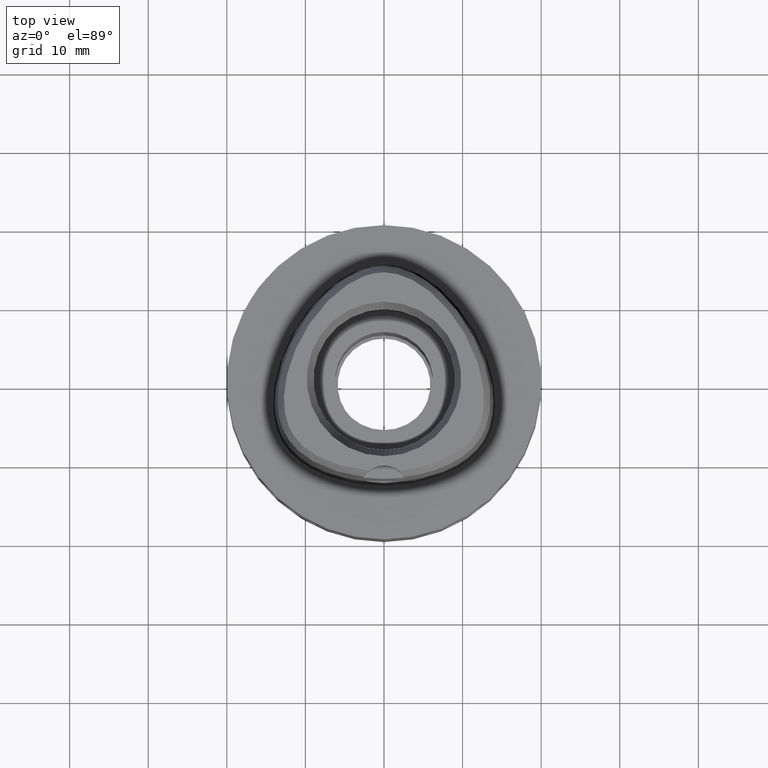
[diagram: clean part render]
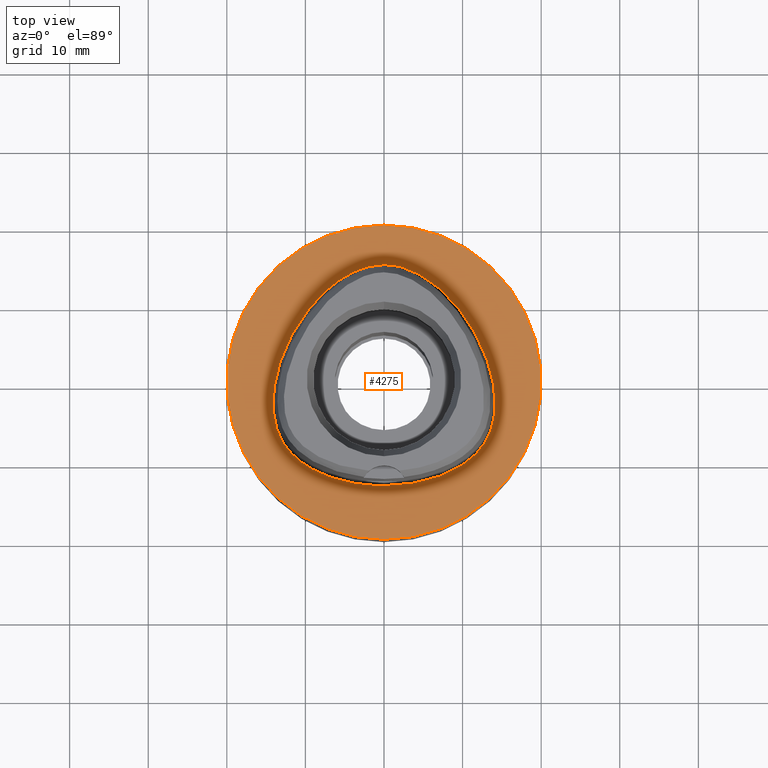
[diagram: same view with one face highlighted and labeled with its STEP entity id]
A machine part, top view. The second image highlights one B-rep face of the part: STEP entity #4275.
In plain terms, the highlighted planar face has unit normal (0, 0, -1).
Its self-contained STEP definition (entity closure, byte-faithful):
#43 = FACE_OUTER_BOUND ( 'NONE', #574, .T. ) ;
#73 = CARTESIAN_POINT ( 'NONE',  ( -2.779232506827000175E-12, -13.16299999999999848, 3.908170083851000111E-13 ) ) ;
#280 = CARTESIAN_POINT ( 'NONE',  ( -7.161686385159452328, -12.03179218665625605, 3.577440467884655806E-08 ) ) ;
#295 = DIRECTION ( 'NONE',  ( 0.0000000000000000000, -1.000000000000000000, 0.0000000000000000000 ) ) ;
#305 = CARTESIAN_POINT ( 'NONE',  ( -9.170754362053505915, 9.963637499419712995, 3.577440467884655806E-08 ) ) ;
#328 = CARTESIAN_POINT ( 'NONE',  ( 1.806015238205999858E-10, 14.96299999994999830, 3.914646384828000049E-13 ) ) ;
#332 = EDGE_CURVE ( 'NONE', #2334, #4506, #4452, .T. ) ;
#333 = CARTESIAN_POINT ( 'NONE',  ( 12.97089752013720521, -7.488751174883140571, -2.401934560806746194E-07 ) ) ;
#355 = CARTESIAN_POINT ( 'NONE',  ( 13.73754042016165222, -5.736583204838447969, -2.401934560806746194E-07 ) ) ;
#393 = CARTESIAN_POINT ( 'NONE',  ( 3.782076376367932369, 14.19393594298898797, -2.401934560806746194E-07 ) ) ;
#541 = AXIS2_PLACEMENT_3D ( 'NONE', #2586, #1479, #807 ) ;
#574 = EDGE_LOOP ( 'NONE', ( #1365, #2173 ) ) ;
#655 = CARTESIAN_POINT ( 'NONE',  ( 0.0000000000000000000, 1.249139735129999848E-14, 0.0000000000000000000 ) ) ;
#685 = CARTESIAN_POINT ( 'NONE',  ( -1.631981571977094925, 14.84698124911709094, 3.577440467884655806E-08 ) ) ;
#729 = CARTESIAN_POINT ( 'NONE',  ( 7.161686387522159691, -12.03179219316835713, -2.401934560806746194E-07 ) ) ;
#745 = EDGE_CURVE ( 'NONE', #847, #2729, #1385, .T. ) ;
#807 = DIRECTION ( 'NONE',  ( 0.0000000000000000000, 1.000000000000000000, 0.0000000000000000000 ) ) ;
#847 = VERTEX_POINT ( 'NONE', #73 ) ;
#1031 = CARTESIAN_POINT ( 'NONE',  ( -2.779232506827000175E-12, -13.16299999999999848, 3.908170083851000111E-13 ) ) ;
#1100 = CARTESIAN_POINT ( 'NONE',  ( 0.5439938577724008351, 14.96300000601531366, -2.401934560806746194E-07 ) ) ;
#1289 = CARTESIAN_POINT ( 'NONE',  ( 1.806015238205999858E-10, 14.96299999994999830, 3.914646384828000049E-13 ) ) ;
#1365 = ORIENTED_EDGE ( 'NONE', *, *, #3435, .F. ) ;
#1370 = CARTESIAN_POINT ( 'NONE',  ( 1.806015238205999858E-10, 14.96299999994999830, 3.914646384828000049E-13 ) ) ;
#1385 = B_SPLINE_CURVE_WITH_KNOTS ( 'NONE', 3,
 ( #2846, #3610, #4283, #729, #2175, #1811, #3943, #1395, #333, #4351, #355, #1835, #4257, #2138, #1749, #1460, #4674, #3632, #393, #3274, #1100, #1370 ),
 .UNSPECIFIED., .F., .F.,
 ( 4, 1, 1, 1, 1, 1, 1, 1, 1, 1, 1, 1, 1, 1, 1, 1, 1, 1, 1, 4 ),
 ( 0.0000000000000000000, 0.08333333333319001279, 0.1666666666664000096, 0.2083333333328999948, 0.2499999999995000111, 0.2916666666661000273, 0.3124999999992999489, 0.3333333333326000125, 0.3541666666659000207, 0.3749999999991999733, 0.4166666666658000451, 0.4583333333323000303, 0.4999999999988999910, 0.5833333333319999925, 0.6666666666652000250, 0.7499999999983000265, 0.8333333333314000280, 0.9166666666646000605, 0.9583333333311000457, 1.000000000000000000 ),
 .UNSPECIFIED. ) ;
#1395 = CARTESIAN_POINT ( 'NONE',  ( 12.52522393244426446, -8.173666409788390652, -2.401934560806746194E-07 ) ) ;
#1460 = CARTESIAN_POINT ( 'NONE',  ( 11.50301490694611850, 6.641268753016376536, -2.401934560806746194E-07 ) ) ;
#1479 = DIRECTION ( 'NONE',  ( 0.0000000000000000000, 0.0000000000000000000, -1.000000000000000000 ) ) ;
#1486 = DIRECTION ( 'NONE',  ( 0.0000000000000000000, 0.0000000000000000000, -1.000000000000000000 ) ) ;
#1489 = CARTESIAN_POINT ( 'NONE',  ( 0.0000000000000000000, 1.224646799146999965E-14, 0.0000000000000000000 ) ) ;
#1530 = CARTESIAN_POINT ( 'NONE',  ( 0.0000000000000000000, 20.00000000000000000, 0.0000000000000000000 ) ) ;
#1744 = CARTESIAN_POINT ( 'NONE',  ( -4.043386007570667573, -12.92392499911871084, 3.577440467884655806E-08 ) ) ;
#1749 = CARTESIAN_POINT ( 'NONE',  ( 13.21414037614192161, 2.960287502052545427, -2.401934560806746194E-07 ) ) ;
#1767 = CARTESIAN_POINT ( 'NONE',  ( -13.73754041352899158, -5.736583202869416809, 3.577440467884655806E-08 ) ) ;
#1811 = CARTESIAN_POINT ( 'NONE',  ( 10.81142122620143198, -9.988463676619012688, -2.401934560806746194E-07 ) ) ;
#1823 = PLANE ( 'NONE',  #3717 ) ;
#1835 = CARTESIAN_POINT ( 'NONE',  ( 14.05597390183479689, -4.368733594602097092, -2.401934560806746194E-07 ) ) ;
#1861 = FACE_BOUND ( 'NONE', #4068, .T. ) ;
#2043 = CARTESIAN_POINT ( 'NONE',  ( -12.52522392685857078, -8.173666405723038153, 3.577440467884655806E-08 ) ) ;
#2056 = CIRCLE ( 'NONE', #541, 20.00000000000000000 ) ;
#2091 = CARTESIAN_POINT ( 'NONE',  ( -0.5439938572634445135, 14.96299999911152945, 3.577440467884655806E-08 ) ) ;
#2114 = CARTESIAN_POINT ( 'NONE',  ( -1.347795335861000643, -13.16299999910947705, 3.577440467884655806E-08 ) ) ;
#2138 = CARTESIAN_POINT ( 'NONE',  ( 14.00068088610903061, -0.1863062489424328894, -2.401934560806746194E-07 ) ) ;
#2173 = ORIENTED_EDGE ( 'NONE', *, *, #332, .F. ) ;
#2175 = CARTESIAN_POINT ( 'NONE',  ( 9.354901136182180110, -10.96475156774397597, -2.401934560806746194E-07 ) ) ;
#2334 = VERTEX_POINT ( 'NONE', #4111 ) ;
#2485 = CARTESIAN_POINT ( 'NONE',  ( -11.83679699136908070, -9.028767382194384794, 3.577440467884655806E-08 ) ) ;
#2506 = CARTESIAN_POINT ( 'NONE',  ( -12.97089751415462011, -7.488751171427192155, 3.577440467884655806E-08 ) ) ;
#2539 = AXIS2_PLACEMENT_3D ( 'NONE', #655, #1486, #295 ) ;
#2562 = DIRECTION ( 'NONE',  ( 0.0000000000000000000, 0.0000000000000000000, -1.000000000000000000 ) ) ;
#2581 = ORIENTED_EDGE ( 'NONE', *, *, #745, .F. ) ;
#2586 = CARTESIAN_POINT ( 'NONE',  ( 0.0000000000000000000, 1.249139735129999848E-14, 0.0000000000000000000 ) ) ;
#2729 = VERTEX_POINT ( 'NONE', #1289 ) ;
#2765 = CARTESIAN_POINT ( 'NONE',  ( -10.81142122193574018, -9.988463671168158697, 3.577440467884655806E-08 ) ) ;
#2821 = CARTESIAN_POINT ( 'NONE',  ( -14.00068087927659377, -0.1863062501574488661, 3.577440467884655806E-08 ) ) ;
#2846 = CARTESIAN_POINT ( 'NONE',  ( -2.779232506827000175E-12, -13.16299999999999848, 3.908170083851000111E-13 ) ) ;
#3266 = ORIENTED_EDGE ( 'NONE', *, *, #3732, .F. ) ;
#3274 = CARTESIAN_POINT ( 'NONE',  ( 1.631981573394234664, 14.84698125591367912, -2.401934560806746194E-07 ) ) ;
#3435 = EDGE_CURVE ( 'NONE', #4506, #2334, #2056, .T. ) ;
#3488 = CARTESIAN_POINT ( 'NONE',  ( -9.354901132765073513, -10.96475156171995025, 3.577440467884655806E-08 ) ) ;
#3538 = CARTESIAN_POINT ( 'NONE',  ( -13.21414036962589478, 2.960287499694253199, 3.577440467884655806E-08 ) ) ;
#3564 = CARTESIAN_POINT ( 'NONE',  ( -3.782076373399030800, 14.19393593667779996, 3.577440467884655806E-08 ) ) ;
#3610 = CARTESIAN_POINT ( 'NONE',  ( 1.347795336263878596, -13.16300000600466191, -2.401934560806746194E-07 ) ) ;
#3632 = CARTESIAN_POINT ( 'NONE',  ( 6.372642524831402255, 12.66899062976242973, -2.401934560806746194E-07 ) ) ;
#3663 = DIRECTION ( 'NONE',  ( 0.0000000000000000000, -1.000000000000000000, 0.0000000000000000000 ) ) ;
#3717 = AXIS2_PLACEMENT_3D ( 'NONE', #1489, #2562, #3663 ) ;
#3732 = EDGE_CURVE ( 'NONE', #2729, #847, #3874, .T. ) ;
#3874 = B_SPLINE_CURVE_WITH_KNOTS ( 'NONE', 3,
 ( #328, #2091, #685, #3564, #3900, #305, #4227, #3538, #2821, #3940, #4279, #1767, #3919, #2506, #2043, #2485, #2765, #3488, #280, #1744, #2114, #1031 ),
 .UNSPECIFIED., .F., .F.,
 ( 4, 1, 1, 1, 1, 1, 1, 1, 1, 1, 1, 1, 1, 1, 1, 1, 1, 1, 1, 4 ),
 ( 0.0000000000000000000, 0.04166666667109000105, 0.08333333333756000327, 0.1666666666706000111, 0.2500000000034999781, 0.3333333333364000284, 0.4166666666693999987, 0.5000000000023999691, 0.5416666666689000653, 0.5833333333353000194, 0.6250000000018000046, 0.6458333333350000371, 0.6666666666682999898, 0.6875000000015000223, 0.7083333333347000549, 0.7500000000012000401, 0.7916666666677000253, 0.8333333333342000104, 0.9166666666671999808, 1.000000000000000000 ),
 .UNSPECIFIED. ) ;
#3900 = CARTESIAN_POINT ( 'NONE',  ( -6.372642520531663912, 12.66899062429095579, 3.577440467884655806E-08 ) ) ;
#3919 = CARTESIAN_POINT ( 'NONE',  ( -13.34121471284161586, -6.760328905885856443, 3.577440467884655806E-08 ) ) ;
#3940 = CARTESIAN_POINT ( 'NONE',  ( -14.17320396502120694, -2.619206250006882453, 3.577440467884655806E-08 ) ) ;
#3943 = CARTESIAN_POINT ( 'NONE',  ( 11.83679699639671945, -9.028767386959914987, -2.401934560806746194E-07 ) ) ;
#4068 = EDGE_LOOP ( 'NONE', ( #3266, #2581 ) ) ;
#4111 = CARTESIAN_POINT ( 'NONE',  ( 0.0000000000000000000, -20.00000000000000000, 0.0000000000000000000 ) ) ;
#4227 = CARTESIAN_POINT ( 'NONE',  ( -11.50301490093912449, 6.641268749550731876, 3.577440467884655806E-08 ) ) ;
#4257 = CARTESIAN_POINT ( 'NONE',  ( 14.17320397193249626, -2.619206249958122346, -2.401934560806746194E-07 ) ) ;
#4275 = ADVANCED_FACE ( 'NONE', ( #43, #1861 ), #1823, .F. ) ;
#4279 = CARTESIAN_POINT ( 'NONE',  ( -14.05597389497331484, -4.368733593623665534, 3.577440467884655806E-08 ) ) ;
#4283 = CARTESIAN_POINT ( 'NONE',  ( 4.043386008791264530, -12.92392500594169569, -2.401934560806746194E-07 ) ) ;
#4351 = CARTESIAN_POINT ( 'NONE',  ( 13.34121471916269641, -6.760328908694082983, -2.401934560806746194E-07 ) ) ;
#4452 = CIRCLE ( 'NONE', #2539, 20.00000000000000000 ) ;
#4506 = VERTEX_POINT ( 'NONE', #1530 ) ;
#4674 = CARTESIAN_POINT ( 'NONE',  ( 9.170754367357480064, 9.963637503893043146, -2.401934560806746194E-07 ) ) ;